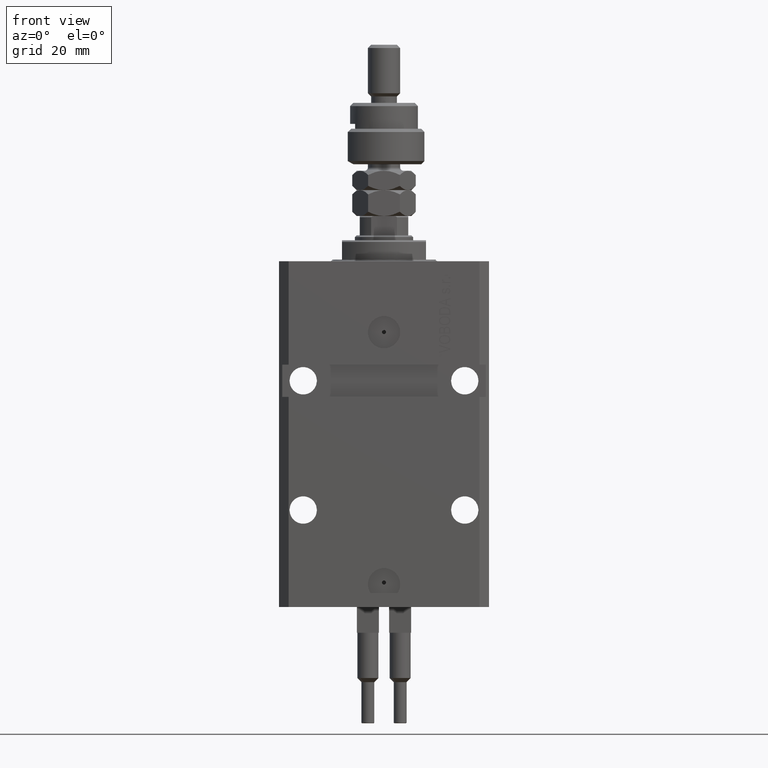
[diagram: clean part render]
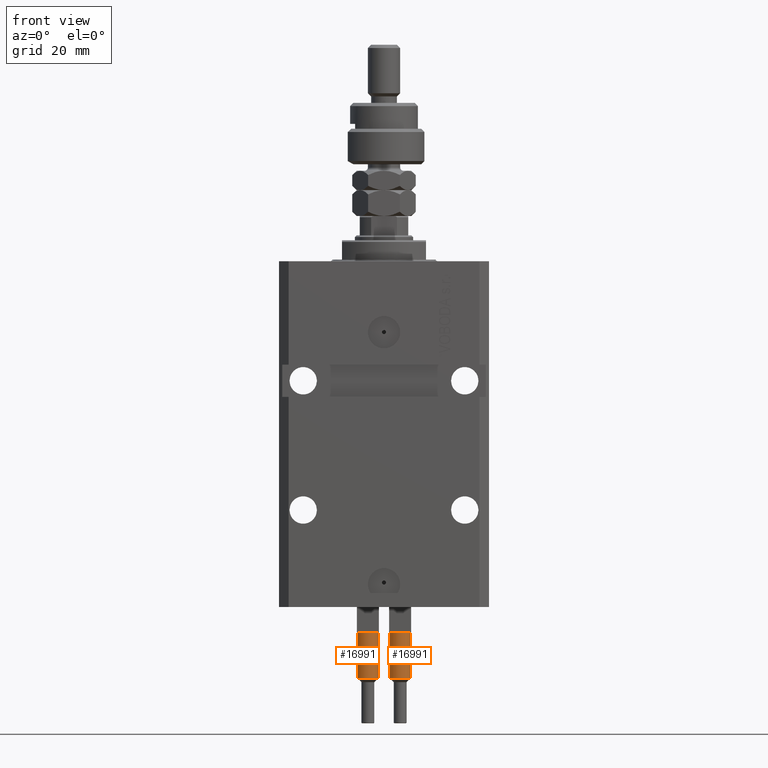
[diagram: same view with one multi-face feature highlighted, each face labeled with its STEP entity id]
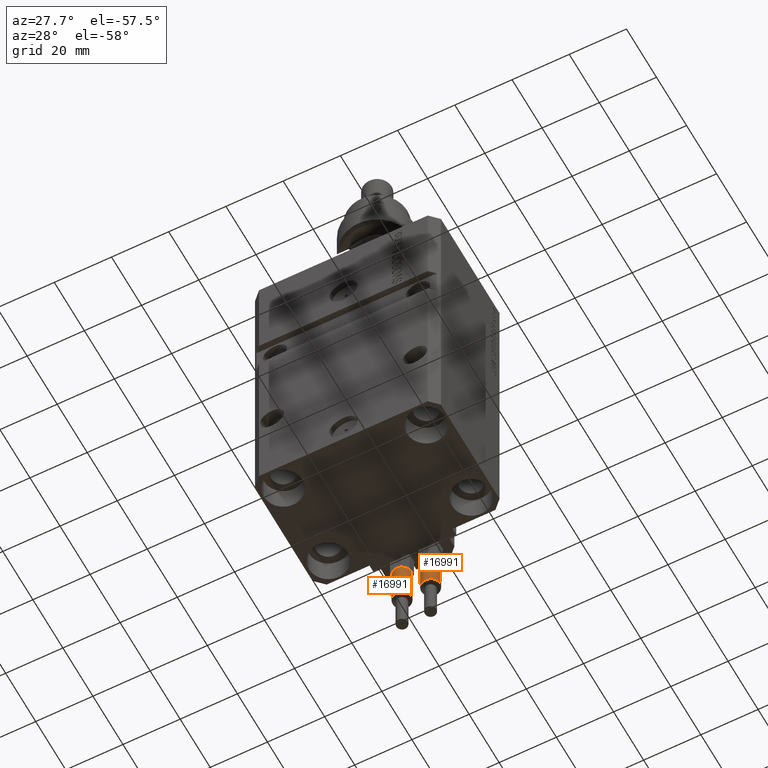
[diagram: same view with one multi-face feature highlighted, each face labeled with its STEP entity id]
A machine part, front view. The highlighted faces form ONE feature: a constant-radius fillet chain: 2 tangent blend faces with common blend radius 3.25 mm. The faces share edges in the B-rep.
A second angle (auxiliary view) of the same feature is appended — it is thin or edge-on in the first view.
Their STEP definitions:
[1] entity #16991 (Cylinder):
#801 = VERTEX_POINT ( 'NONE', #39589 ) ;
#877 = DIRECTION ( 'NONE',  ( 0.000000000000000000, 0.000000000000000000, 1.000000000000000000 ) ) ;
#1575 = VERTEX_POINT ( 'NONE', #47688 ) ;
#1814 = CARTESIAN_POINT ( 'NONE',  ( 0.000000000000000000, 0.000000000000000000, 56.00000000000000000 ) ) ;
#3458 = EDGE_LOOP ( 'NONE', ( #41672, #22994, #20247, #3529, #25693, #25434 ) ) ;
#3529 = ORIENTED_EDGE ( 'NONE', *, *, #43600, .T. ) ;
#4540 = VERTEX_POINT ( 'NONE', #17500 ) ;
#5591 = DIRECTION ( 'NONE',  ( 1.000000000000000000, 0.000000000000000000, 0.000000000000000000 ) ) ;
#5851 = CARTESIAN_POINT ( 'NONE',  ( 0.000000000000000000, 0.000000000000000000, 53.99999999999998579 ) ) ;
#6157 = DIRECTION ( 'NONE',  ( 1.000000000000000000, 0.000000000000000000, 0.000000000000000000 ) ) ;
#8438 = VERTEX_POINT ( 'NONE', #16674 ) ;
#9845 = VECTOR ( 'NONE', #19628, 1000.000000000000000 ) ;
#10034 = AXIS2_PLACEMENT_3D ( 'NONE', #18879, #34723, #44969 ) ;
#10095 = EDGE_CURVE ( 'NONE', #44176, #801, #12295, .T. ) ;
#10314 = CYLINDRICAL_SURFACE ( 'NONE', #41529, 3.250000000000000444 ) ;
#10553 = EDGE_CURVE ( 'NONE', #801, #1575, #35570, .T. ) ;
#10693 = AXIS2_PLACEMENT_3D ( 'NONE', #24440, #877, #24192 ) ;
#12295 = CIRCLE ( 'NONE', #42171, 3.250000000000000444 ) ;
#13400 = EDGE_CURVE ( 'NONE', #48612, #1575, #20412, .T. ) ;
#14214 = DIRECTION ( 'NONE',  ( -0.000000000000000000, -0.000000000000000000, -1.000000000000000000 ) ) ;
#16366 = CIRCLE ( 'NONE', #26295, 3.250000000000000444 ) ;
#16576 = LINE ( 'NONE', #28501, #24004 ) ;
#16674 = CARTESIAN_POINT ( 'NONE',  ( -3.250000000000000444, 0.000000000000000000, 40.00000000000000000 ) ) ;
#16927 = CARTESIAN_POINT ( 'NONE',  ( 3.250000000000000444, 3.980102097228898231E-16, 53.99999999999998579 ) ) ;
#16991 = ADVANCED_FACE ( 'NONE', ( #29534 ), #10314, .T. ) ;
#17500 = CARTESIAN_POINT ( 'NONE',  ( -3.250000000000000444, 0.000000000000000000, 53.99999999999998579 ) ) ;
#18879 = CARTESIAN_POINT ( 'NONE',  ( 0.000000000000000000, 0.000000000000000000, 40.00000000000000000 ) ) ;
#19628 = DIRECTION ( 'NONE',  ( -0.000000000000000000, -0.000000000000000000, -1.000000000000000000 ) ) ;
#20247 = ORIENTED_EDGE ( 'NONE', *, *, #41858, .T. ) ;
#20412 = LINE ( 'NONE', #47697, #9845 ) ;
#21626 = CIRCLE ( 'NONE', #10034, 3.250000000000000444 ) ;
#22994 = ORIENTED_EDGE ( 'NONE', *, *, #32763, .T. ) ;
#24004 = VECTOR ( 'NONE', #32676, 1000.000000000000000 ) ;
#24192 = DIRECTION ( 'NONE',  ( 1.000000000000000000, 0.000000000000000000, 0.000000000000000000 ) ) ;
#24440 = CARTESIAN_POINT ( 'NONE',  ( 0.000000000000000000, 0.000000000000000000, 40.00000000000000000 ) ) ;
#25434 = ORIENTED_EDGE ( 'NONE', *, *, #10553, .T. ) ;
#25693 = ORIENTED_EDGE ( 'NONE', *, *, #10095, .T. ) ;
#26130 = DIRECTION ( 'NONE',  ( -1.000000000000000000, 0.000000000000000000, 0.000000000000000000 ) ) ;
#26295 = AXIS2_PLACEMENT_3D ( 'NONE', #5851, #44543, #5591 ) ;
#28501 = CARTESIAN_POINT ( 'NONE',  ( -3.250000000000000444, 0.000000000000000000, 56.00000000000000000 ) ) ;
#29534 = FACE_OUTER_BOUND ( 'NONE', #3458, .T. ) ;
#32676 = DIRECTION ( 'NONE',  ( -0.000000000000000000, -0.000000000000000000, -1.000000000000000000 ) ) ;
#32763 = EDGE_CURVE ( 'NONE', #48612, #4540, #16366, .T. ) ;
#33922 = CARTESIAN_POINT ( 'NONE',  ( -2.883140648667699146, -1.500000000000000000, 40.00000000000000000 ) ) ;
#34158 = CARTESIAN_POINT ( 'NONE',  ( 0.000000000000000000, 0.000000000000000000, 40.00000000000000000 ) ) ;
#34723 = DIRECTION ( 'NONE',  ( 0.000000000000000000, 0.000000000000000000, 1.000000000000000000 ) ) ;
#35570 = CIRCLE ( 'NONE', #10693, 3.250000000000000444 ) ;
#39589 = CARTESIAN_POINT ( 'NONE',  ( 2.883140648667699146, -1.500000000000000000, 40.00000000000000000 ) ) ;
#41529 = AXIS2_PLACEMENT_3D ( 'NONE', #1814, #14214, #26130 ) ;
#41672 = ORIENTED_EDGE ( 'NONE', *, *, #13400, .F. ) ;
#41858 = EDGE_CURVE ( 'NONE', #4540, #8438, #16576, .T. ) ;
#42171 = AXIS2_PLACEMENT_3D ( 'NONE', #34158, #50267, #6157 ) ;
#43600 = EDGE_CURVE ( 'NONE', #8438, #44176, #21626, .T. ) ;
#44176 = VERTEX_POINT ( 'NONE', #33922 ) ;
#44543 = DIRECTION ( 'NONE',  ( 0.000000000000000000, 0.000000000000000000, -1.000000000000000000 ) ) ;
#44969 = DIRECTION ( 'NONE',  ( 1.000000000000000000, 0.000000000000000000, 0.000000000000000000 ) ) ;
#47688 = CARTESIAN_POINT ( 'NONE',  ( 3.250000000000000444, 3.980102097228898231E-16, 40.00000000000000000 ) ) ;
#47697 = CARTESIAN_POINT ( 'NONE',  ( 3.250000000000000444, 3.980102097228898231E-16, 56.00000000000000000 ) ) ;
#48612 = VERTEX_POINT ( 'NONE', #16927 ) ;
#50267 = DIRECTION ( 'NONE',  ( 0.000000000000000000, 0.000000000000000000, 1.000000000000000000 ) ) ;
[2] entity #16991 (Cylinder):
#801 = VERTEX_POINT ( 'NONE', #39589 ) ;
#877 = DIRECTION ( 'NONE',  ( 0.000000000000000000, 0.000000000000000000, 1.000000000000000000 ) ) ;
#1575 = VERTEX_POINT ( 'NONE', #47688 ) ;
#1814 = CARTESIAN_POINT ( 'NONE',  ( 0.000000000000000000, 0.000000000000000000, 56.00000000000000000 ) ) ;
#3458 = EDGE_LOOP ( 'NONE', ( #41672, #22994, #20247, #3529, #25693, #25434 ) ) ;
#3529 = ORIENTED_EDGE ( 'NONE', *, *, #43600, .T. ) ;
#4540 = VERTEX_POINT ( 'NONE', #17500 ) ;
#5591 = DIRECTION ( 'NONE',  ( 1.000000000000000000, 0.000000000000000000, 0.000000000000000000 ) ) ;
#5851 = CARTESIAN_POINT ( 'NONE',  ( 0.000000000000000000, 0.000000000000000000, 53.99999999999998579 ) ) ;
#6157 = DIRECTION ( 'NONE',  ( 1.000000000000000000, 0.000000000000000000, 0.000000000000000000 ) ) ;
#8438 = VERTEX_POINT ( 'NONE', #16674 ) ;
#9845 = VECTOR ( 'NONE', #19628, 1000.000000000000000 ) ;
#10034 = AXIS2_PLACEMENT_3D ( 'NONE', #18879, #34723, #44969 ) ;
#10095 = EDGE_CURVE ( 'NONE', #44176, #801, #12295, .T. ) ;
#10314 = CYLINDRICAL_SURFACE ( 'NONE', #41529, 3.250000000000000444 ) ;
#10553 = EDGE_CURVE ( 'NONE', #801, #1575, #35570, .T. ) ;
#10693 = AXIS2_PLACEMENT_3D ( 'NONE', #24440, #877, #24192 ) ;
#12295 = CIRCLE ( 'NONE', #42171, 3.250000000000000444 ) ;
#13400 = EDGE_CURVE ( 'NONE', #48612, #1575, #20412, .T. ) ;
#14214 = DIRECTION ( 'NONE',  ( -0.000000000000000000, -0.000000000000000000, -1.000000000000000000 ) ) ;
#16366 = CIRCLE ( 'NONE', #26295, 3.250000000000000444 ) ;
#16576 = LINE ( 'NONE', #28501, #24004 ) ;
#16674 = CARTESIAN_POINT ( 'NONE',  ( -3.250000000000000444, 0.000000000000000000, 40.00000000000000000 ) ) ;
#16927 = CARTESIAN_POINT ( 'NONE',  ( 3.250000000000000444, 3.980102097228898231E-16, 53.99999999999998579 ) ) ;
#16991 = ADVANCED_FACE ( 'NONE', ( #29534 ), #10314, .T. ) ;
#17500 = CARTESIAN_POINT ( 'NONE',  ( -3.250000000000000444, 0.000000000000000000, 53.99999999999998579 ) ) ;
#18879 = CARTESIAN_POINT ( 'NONE',  ( 0.000000000000000000, 0.000000000000000000, 40.00000000000000000 ) ) ;
#19628 = DIRECTION ( 'NONE',  ( -0.000000000000000000, -0.000000000000000000, -1.000000000000000000 ) ) ;
#20247 = ORIENTED_EDGE ( 'NONE', *, *, #41858, .T. ) ;
#20412 = LINE ( 'NONE', #47697, #9845 ) ;
#21626 = CIRCLE ( 'NONE', #10034, 3.250000000000000444 ) ;
#22994 = ORIENTED_EDGE ( 'NONE', *, *, #32763, .T. ) ;
#24004 = VECTOR ( 'NONE', #32676, 1000.000000000000000 ) ;
#24192 = DIRECTION ( 'NONE',  ( 1.000000000000000000, 0.000000000000000000, 0.000000000000000000 ) ) ;
#24440 = CARTESIAN_POINT ( 'NONE',  ( 0.000000000000000000, 0.000000000000000000, 40.00000000000000000 ) ) ;
#25434 = ORIENTED_EDGE ( 'NONE', *, *, #10553, .T. ) ;
#25693 = ORIENTED_EDGE ( 'NONE', *, *, #10095, .T. ) ;
#26130 = DIRECTION ( 'NONE',  ( -1.000000000000000000, 0.000000000000000000, 0.000000000000000000 ) ) ;
#26295 = AXIS2_PLACEMENT_3D ( 'NONE', #5851, #44543, #5591 ) ;
#28501 = CARTESIAN_POINT ( 'NONE',  ( -3.250000000000000444, 0.000000000000000000, 56.00000000000000000 ) ) ;
#29534 = FACE_OUTER_BOUND ( 'NONE', #3458, .T. ) ;
#32676 = DIRECTION ( 'NONE',  ( -0.000000000000000000, -0.000000000000000000, -1.000000000000000000 ) ) ;
#32763 = EDGE_CURVE ( 'NONE', #48612, #4540, #16366, .T. ) ;
#33922 = CARTESIAN_POINT ( 'NONE',  ( -2.883140648667699146, -1.500000000000000000, 40.00000000000000000 ) ) ;
#34158 = CARTESIAN_POINT ( 'NONE',  ( 0.000000000000000000, 0.000000000000000000, 40.00000000000000000 ) ) ;
#34723 = DIRECTION ( 'NONE',  ( 0.000000000000000000, 0.000000000000000000, 1.000000000000000000 ) ) ;
#35570 = CIRCLE ( 'NONE', #10693, 3.250000000000000444 ) ;
#39589 = CARTESIAN_POINT ( 'NONE',  ( 2.883140648667699146, -1.500000000000000000, 40.00000000000000000 ) ) ;
#41529 = AXIS2_PLACEMENT_3D ( 'NONE', #1814, #14214, #26130 ) ;
#41672 = ORIENTED_EDGE ( 'NONE', *, *, #13400, .F. ) ;
#41858 = EDGE_CURVE ( 'NONE', #4540, #8438, #16576, .T. ) ;
#42171 = AXIS2_PLACEMENT_3D ( 'NONE', #34158, #50267, #6157 ) ;
#43600 = EDGE_CURVE ( 'NONE', #8438, #44176, #21626, .T. ) ;
#44176 = VERTEX_POINT ( 'NONE', #33922 ) ;
#44543 = DIRECTION ( 'NONE',  ( 0.000000000000000000, 0.000000000000000000, -1.000000000000000000 ) ) ;
#44969 = DIRECTION ( 'NONE',  ( 1.000000000000000000, 0.000000000000000000, 0.000000000000000000 ) ) ;
#47688 = CARTESIAN_POINT ( 'NONE',  ( 3.250000000000000444, 3.980102097228898231E-16, 40.00000000000000000 ) ) ;
#47697 = CARTESIAN_POINT ( 'NONE',  ( 3.250000000000000444, 3.980102097228898231E-16, 56.00000000000000000 ) ) ;
#48612 = VERTEX_POINT ( 'NONE', #16927 ) ;
#50267 = DIRECTION ( 'NONE',  ( 0.000000000000000000, 0.000000000000000000, 1.000000000000000000 ) ) ;